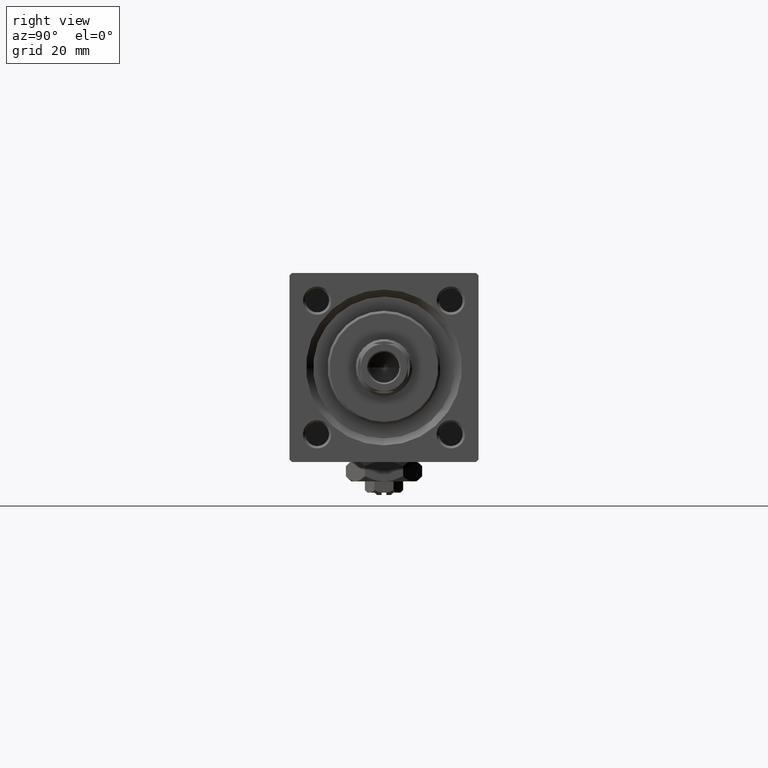
[diagram: clean part render]
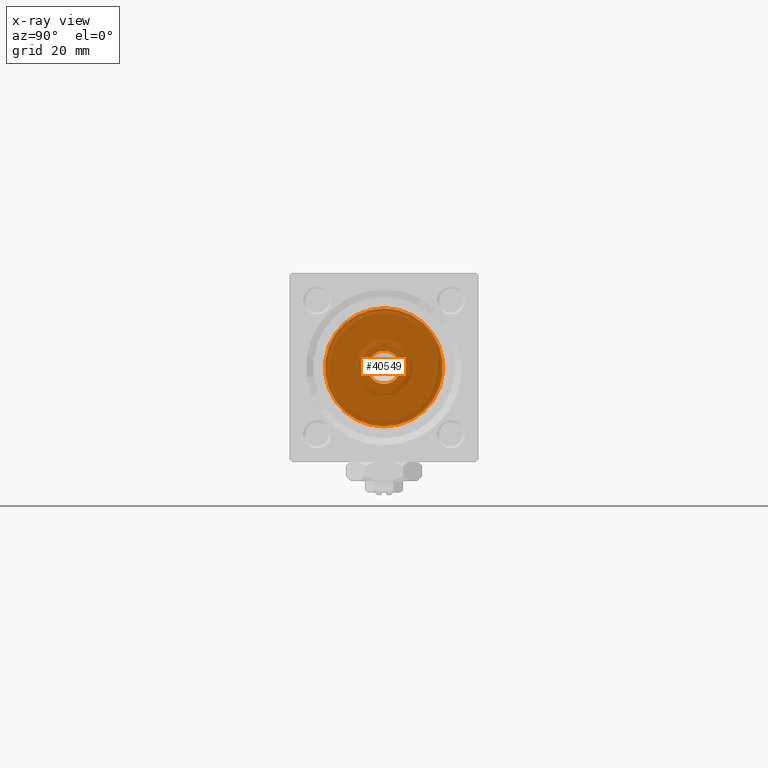
[diagram: x-ray — body ghosted, one internal face saturated and labeled with its STEP entity id]
A machine part, right view, then the same camera in x-ray: the body is ghosted and one INTERNAL B-rep face — a face not visible from any outside direction — is saturated and labeled: STEP entity #40549.
In plain terms, the highlighted planar face has unit normal (-1, 0, 0).
Its self-contained STEP definition (entity closure, byte-faithful):
#1918 = PLANE ( 'NONE',  #27787 ) ;
#4214 = AXIS2_PLACEMENT_3D ( 'NONE', #32689, #21078, #12398 ) ;
#6136 = DIRECTION ( 'NONE',  ( -0.000000000000000000, 0.000000000000000000, 1.000000000000000000 ) ) ;
#10989 = DIRECTION ( 'NONE',  ( -1.000000000000000000, -0.000000000000000000, -0.000000000000000000 ) ) ;
#12297 = EDGE_LOOP ( 'NONE', ( #18309, #26191 ) ) ;
#12398 = DIRECTION ( 'NONE',  ( 0.000000000000000000, 0.000000000000000000, -1.000000000000000000 ) ) ;
#12589 = ORIENTED_EDGE ( 'NONE', *, *, #29119, .T. ) ;
#18309 = ORIENTED_EDGE ( 'NONE', *, *, #41753, .T. ) ;
#18557 = CARTESIAN_POINT ( 'NONE',  ( 23.99999999999999289, 4.286263797015736595E-16, -3.500000000000000000 ) ) ;
#18669 = VERTEX_POINT ( 'NONE', #48940 ) ;
#21078 = DIRECTION ( 'NONE',  ( 1.000000000000000000, 0.000000000000000000, 0.000000000000000000 ) ) ;
#21696 = CARTESIAN_POINT ( 'NONE',  ( 24.00000000000000000, 0.000000000000000000, 0.000000000000000000 ) ) ;
#21951 = FACE_BOUND ( 'NONE', #12297, .T. ) ;
#21991 = DIRECTION ( 'NONE',  ( -1.000000000000000000, -0.000000000000000000, -0.000000000000000000 ) ) ;
#24270 = VERTEX_POINT ( 'NONE', #38975 ) ;
#24494 = CIRCLE ( 'NONE', #27896, 3.500000000000000000 ) ;
#25143 = CIRCLE ( 'NONE', #45355, 3.500000000000000000 ) ;
#25894 = VERTEX_POINT ( 'NONE', #18557 ) ;
#26191 = ORIENTED_EDGE ( 'NONE', *, *, #46339, .T. ) ;
#27781 = VERTEX_POINT ( 'NONE', #37910 ) ;
#27787 = AXIS2_PLACEMENT_3D ( 'NONE', #21696, #45958, #6136 ) ;
#27896 = AXIS2_PLACEMENT_3D ( 'NONE', #35763, #10989, #31805 ) ;
#29119 = EDGE_CURVE ( 'NONE', #18669, #24270, #45184, .T. ) ;
#29993 = AXIS2_PLACEMENT_3D ( 'NONE', #43397, #51293, #35462 ) ;
#31805 = DIRECTION ( 'NONE',  ( 0.000000000000000000, 0.000000000000000000, 1.000000000000000000 ) ) ;
#32689 = CARTESIAN_POINT ( 'NONE',  ( 24.00000000000000000, -2.602085213965210642E-15, 0.000000000000000000 ) ) ;
#35462 = DIRECTION ( 'NONE',  ( 0.000000000000000000, 0.000000000000000000, -1.000000000000000000 ) ) ;
#35763 = CARTESIAN_POINT ( 'NONE',  ( 23.99999999999999289, 0.000000000000000000, 0.000000000000000000 ) ) ;
#36205 = CIRCLE ( 'NONE', #4214, 12.49999999999999645 ) ;
#37552 = CARTESIAN_POINT ( 'NONE',  ( 23.99999999999999289, 0.000000000000000000, 0.000000000000000000 ) ) ;
#37910 = CARTESIAN_POINT ( 'NONE',  ( 23.99999999999999289, 0.000000000000000000, 3.500000000000000000 ) ) ;
#38975 = CARTESIAN_POINT ( 'NONE',  ( 24.00000000000000000, -2.602085213965210642E-15, 12.49999999999999645 ) ) ;
#40549 = ADVANCED_FACE ( 'NONE', ( #21951, #46473 ), #1918, .F. ) ;
#40601 = ORIENTED_EDGE ( 'NONE', *, *, #45066, .T. ) ;
#41753 = EDGE_CURVE ( 'NONE', #27781, #25894, #25143, .T. ) ;
#43272 = EDGE_LOOP ( 'NONE', ( #40601, #12589 ) ) ;
#43397 = CARTESIAN_POINT ( 'NONE',  ( 24.00000000000000000, -2.602085213965210642E-15, 0.000000000000000000 ) ) ;
#45066 = EDGE_CURVE ( 'NONE', #24270, #18669, #36205, .T. ) ;
#45184 = CIRCLE ( 'NONE', #29993, 12.49999999999999645 ) ;
#45355 = AXIS2_PLACEMENT_3D ( 'NONE', #37552, #21991, #46256 ) ;
#45958 = DIRECTION ( 'NONE',  ( -1.000000000000000000, 0.000000000000000000, -0.000000000000000000 ) ) ;
#46256 = DIRECTION ( 'NONE',  ( 0.000000000000000000, 0.000000000000000000, 1.000000000000000000 ) ) ;
#46339 = EDGE_CURVE ( 'NONE', #25894, #27781, #24494, .T. ) ;
#46473 = FACE_OUTER_BOUND ( 'NONE', #43272, .T. ) ;
#48940 = CARTESIAN_POINT ( 'NONE',  ( 24.00000000000000000, -1.071276715031019515E-15, -12.49999999999999645 ) ) ;
#51293 = DIRECTION ( 'NONE',  ( 1.000000000000000000, 0.000000000000000000, 0.000000000000000000 ) ) ;